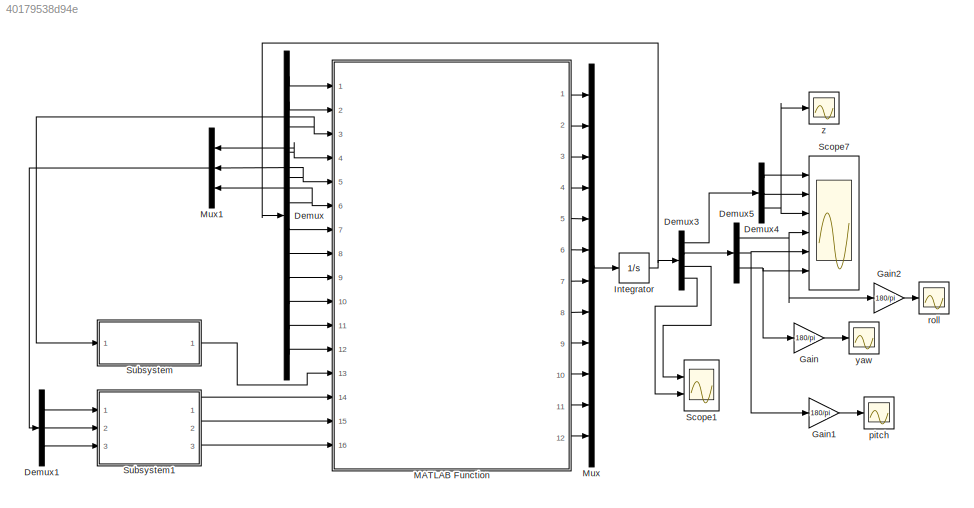
MODEL slx_40179538d94e
KIND model
CONFIG AbsTol = auto
CONFIG EnableMultiTasking = off
CONFIG FixedStep = auto
CONFIG MaxStep = auto
CONFIG MinStep = auto
CONFIG RelTol = 1e-3
CONFIG SampleTimeConstraint = Unconstrained
CONFIG SolverName = VariableStepAuto
CONFIG StartTime = 0.0
CONFIG StopTime = 10.0
BLOCK [Demux] Demux
  Outputs = 12
  Ports = [1, 12]
BLOCK [Demux] Demux1
  Outputs = 3
  Ports = [1, 3]
BLOCK [Demux] Demux3
  Ports = [1, 4]
BLOCK [Demux] Demux4
  Outputs = 3
  Ports = [1, 3]
BLOCK [Demux] Demux5
  Outputs = 3
  Ports = [1, 3]
BLOCK [Gain] Gain
  Gain = 180/pi
BLOCK [Gain] Gain1
  Gain = 180/pi
BLOCK [Gain] Gain2
  Gain = 180/pi
BLOCK [Integrator] Integrator
  InitialCondition = [0;0;0;0;0;0;0;0;0;0;0;0]
  Ports = [1, 1]
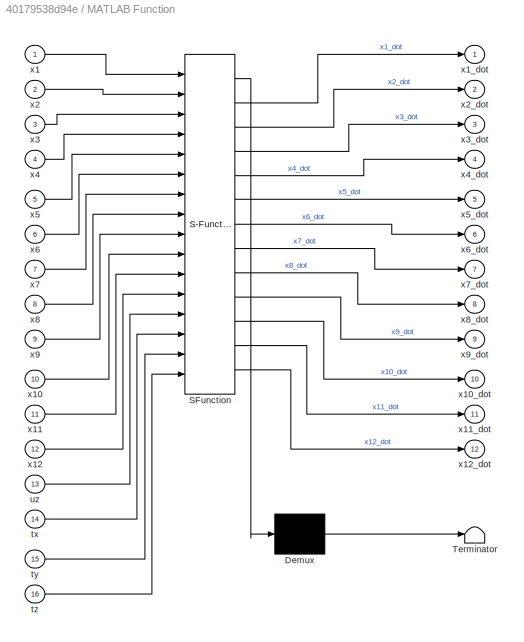
BLOCK [SubSystem] MATLAB Function
  ErrorFcn = Stateflow.Translate.translate
  PermitHierarchicalResolution = ExplicitOnly
  Ports = [16, 12]
  RequestExecContextInheritance = off
  SFBlockType = MATLAB Function
  TreatAsAtomicUnit = on
BLOCK [Demux] MATLAB Function/ Demux 
  Outputs = 1
  Ports = [1, 1]
BLOCK [S-Function] MATLAB Function/ SFunction 
  EnableBusSupport = on
  FunctionName = sf_sfun
  PortCounts = [16 13]
  Ports = [16, 13]
  SFcnIsStateOwnerBlock = off
  SFunctionDeploymentMode = off
  Tag = Stateflow S-Function 2
BLOCK [Terminator] MATLAB Function/ Terminator 
BLOCK [Inport] MATLAB Function/tx
  Port = 14
BLOCK [Inport] MATLAB Function/ty
  Port = 15
BLOCK [Inport] MATLAB Function/tz
  Port = 16
BLOCK [Inport] MATLAB Function/uz
  Port = 13
BLOCK [Inport] MATLAB Function/x1
BLOCK [Inport] MATLAB Function/x10
  Port = 10
BLOCK [Outport] MATLAB Function/x10_dot
  Port = 10
BLOCK [Inport] MATLAB Function/x11
  Port = 11
BLOCK [Outport] MATLAB Function/x11_dot
  Port = 11
BLOCK [Inport] MATLAB Function/x12
  Port = 12
BLOCK [Outport] MATLAB Function/x12_dot
  Port = 12
BLOCK [Outport] MATLAB Function/x1_dot
BLOCK [Inport] MATLAB Function/x2
  Port = 2
BLOCK [Outport] MATLAB Function/x2_dot
  Port = 2
BLOCK [Inport] MATLAB Function/x3
  Port = 3
BLOCK [Outport] MATLAB Function/x3_dot
  Port = 3
BLOCK [Inport] MATLAB Function/x4
  Port = 4
BLOCK [Outport] MATLAB Function/x4_dot
  Port = 4
BLOCK [Inport] MATLAB Function/x5
  Port = 5
BLOCK [Outport] MATLAB Function/x5_dot
  Port = 5
BLOCK [Inport] MATLAB Function/x6
  Port = 6
BLOCK [Outport] MATLAB Function/x6_dot
  Port = 6
BLOCK [Inport] MATLAB Function/x7
  Port = 7
BLOCK [Outport] MATLAB Function/x7_dot
  Port = 7
BLOCK [Inport] MATLAB Function/x8
  Port = 8
BLOCK [Outport] MATLAB Function/x8_dot
  Port = 8
BLOCK [Inport] MATLAB Function/x9
  Port = 9
BLOCK [Outport] MATLAB Function/x9_dot
  Port = 9
BLOCK [Mux] Mux
  DisplayOption = bar
  Inputs = 12
  Ports = [12, 1]
BLOCK [Mux] Mux1
  DisplayOption = bar
  Inputs = 3
  NameLocation = top
  Ports = [3, 1]
BLOCK [Scope] Scope1
  Floating = off
  NameLocation = top
  NumInputPorts = 2
  Ports = [2]
  ScopeSpecificationString = Simulink.scopes.TimeScopeBlockCfg('CurrentConfiguration', extmgr.ConfigurationSet(extmgr.Configuration('Core','General UI',true,'FigureColor',[1 1 1]),extmgr.Configuration('Core','Source UI',true),extmgr.Configuration('Sources','WiredSimulink',true,'DataLoggingSaveFormat','StructureWithTime','DataLoggingDecimation','1','DataLoggingVariableName','ScopeData1'),extmgr.Configuration('Visuals','Time Do...<+6673ch>
BLOCK [Scope] Scope7
  Floating = off
  NameLocation = top
  NumInputPorts = 6
  Ports = [6]
  ScopeSpecificationString = Simulink.scopes.TimeScopeBlockCfg('CurrentConfiguration', extmgr.ConfigurationSet(extmgr.Configuration('Core','General UI',true,'FigureColor',[1 1 1]),extmgr.Configuration('Core','Source UI',true),extmgr.Configuration('Sources','WiredSimulink',true,'DataLoggingSaveFormat','StructureWithTime','DataLoggingDecimation','1'),extmgr.Configuration('Visuals','Time Domain',true,'SerializedDisplays',{struct...<+6634ch>
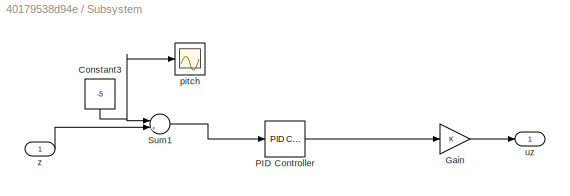
BLOCK [SubSystem] Subsystem
  Ports = [1, 1]
  RequestExecContextInheritance = off
BLOCK [Constant] Subsystem/Constant3
  NameLocation = left
  Value = -5
BLOCK [Gain] Subsystem/Gain
BLOCK [Reference] Subsystem/PID Controller  REF=pid_lib/PID Controller
  Ports = [1, 1]
  SourceBlock = pid_lib/PID Controller
  SourceProductBaseCode = SL
  SourceType = PID 1dof
BLOCK [Sum] Subsystem/Sum1
  Inputs = |+-
  Ports = [2, 1]
BLOCK [Scope] Subsystem/pitch
  Floating = off
  NumInputPorts = 1
  Ports = [1]
  ScopeSpecificationString = Simulink.scopes.TimeScopeBlockCfg('CurrentConfiguration', extmgr.ConfigurationSet(extmgr.Configuration('Core','General UI',true),extmgr.Configuration('Core','Source UI',true),extmgr.Configuration('Sources','WiredSimulink',true,'DataLoggingVariableName','Ref_z','DataLogging',true,'DataLoggingSaveFormat','Array'),extmgr.Configuration('Visuals','Time Domain',true,'SerializedDisplays',{struct('MinYLim...<+1451ch>
BLOCK [Outport] Subsystem/uz
BLOCK [Inport] Subsystem/z
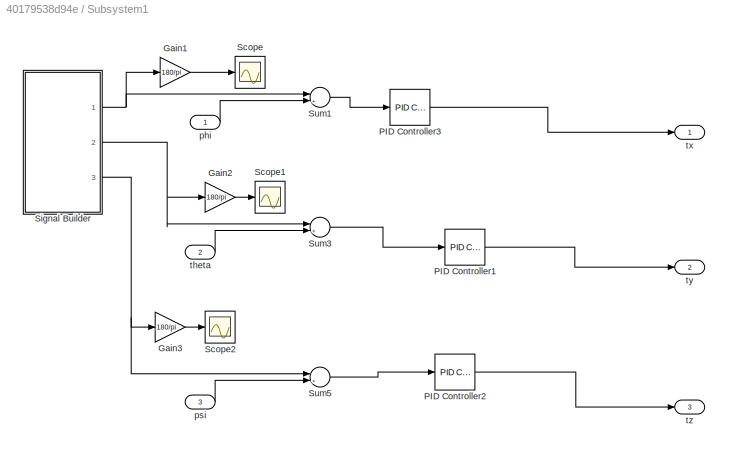
BLOCK [SubSystem] Subsystem1
  Ports = [3, 3]
  RequestExecContextInheritance = off
BLOCK [Gain] Subsystem1/Gain1
  Gain = 180/pi
BLOCK [Gain] Subsystem1/Gain2
  Gain = 180/pi
BLOCK [Gain] Subsystem1/Gain3
  Gain = 180/pi
BLOCK [Reference] Subsystem1/PID Controller1  REF=pid_lib/PID Controller
  Ports = [1, 1]
  SourceBlock = pid_lib/PID Controller
  SourceProductBaseCode = SL
  SourceType = PID 1dof
BLOCK [Reference] Subsystem1/PID Controller2  REF=pid_lib/PID Controller
  Ports = [1, 1]
  SourceBlock = pid_lib/PID Controller
  SourceProductBaseCode = SL
  SourceType = PID 1dof
BLOCK [Reference] Subsystem1/PID Controller3  REF=pid_lib/PID Controller
  Ports = [1, 1]
  SourceBlock = pid_lib/PID Controller
  SourceProductBaseCode = SL
  SourceType = PID 1dof
BLOCK [Scope] Subsystem1/Scope
  Floating = off
  NumInputPorts = 1
  Ports = [1]
  ScopeSpecificationString = Simulink.scopes.TimeScopeBlockCfg('CurrentConfiguration', extmgr.ConfigurationSet(extmgr.Configuration('Core','General UI',true),extmgr.Configuration('Core','Source UI',true),extmgr.Configuration('Sources','WiredSimulink',true,'DataLoggingVariableName','Ref_phi','DataLogging',true,'DataLoggingSaveFormat','Array'),extmgr.Configuration('Visuals','Time Domain',true,'SerializedDisplays',{struct('MinYL...<+1392ch>
BLOCK [Scope] Subsystem1/Scope1
  Floating = off
  NumInputPorts = 1
  Ports = [1]
  ScopeSpecificationString = Simulink.scopes.TimeScopeBlockCfg('CurrentConfiguration', extmgr.ConfigurationSet(extmgr.Configuration('Core','General UI',true),extmgr.Configuration('Core','Source UI',true),extmgr.Configuration('Sources','WiredSimulink',true,'DataLoggingVariableName','Ref_theta','DataLogging',true,'DataLoggingSaveFormat','Array'),extmgr.Configuration('Visuals','Time Domain',true,'SerializedDisplays',{struct('Min...<+1406ch>
BLOCK [Scope] Subsystem1/Scope2
  Floating = off
  NumInputPorts = 1
  Ports = [1]
  ScopeSpecificationString = Simulink.scopes.TimeScopeBlockCfg('CurrentConfiguration', extmgr.ConfigurationSet(extmgr.Configuration('Core','General UI',true),extmgr.Configuration('Core','Source UI',true),extmgr.Configuration('Sources','WiredSimulink',true,'DataLoggingVariableName','Ref_psi','DataLogging',true,'DataLoggingSaveFormat','Array'),extmgr.Configuration('Visuals','Time Domain',true,'SerializedDisplays',{struct('MinYL...<+1404ch>
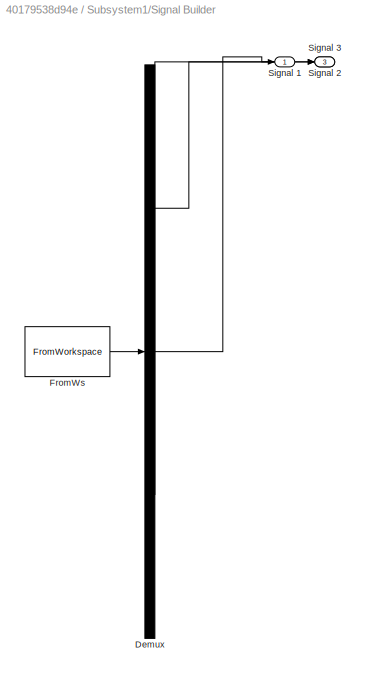
BLOCK [SubSystem] Subsystem1/Signal Builder
  ClipboardFcn = sigbuilder_block('clipboard');
  CloseFcn = sigbuilder_block('close');
  ContinueFcn = sigbuilder_block('continue');
  CopyFcn = sigbuilder_block('copy');
  DeleteFcn = sigbuilder_block('delete');
  LoadFcn = sigbuilder_block('load');
  MaskHideContents = on
  ModelCloseFcn = sigbuilder_block('modelClose');
  NameChangeFcn = sigbuilder_block('namechange');
  OpenFcn = sigbuilder_block('open',[437.6 153 550.4 359.25 ]);
  PauseFcn = sigbuilder_block('pause');
  Ports = [0, 3]
  PreSaveFcn = sigbuilder_block('preSave');
  RequestExecContextInheritance = off
  StartFcn = sigbuilder_block('start');
  StopFcn = sigbuilder_block('stop');
  Tag = STV Subsys
BLOCK [Demux] Subsystem1/Signal Builder/Demux
  DisplayOption = none
  Outputs = 3
  Ports = [1, 3]
  Tag = STV Demux
BLOCK [FromWorkspace] Subsystem1/Signal Builder/FromWs
  Tag = STV FromWs
  VariableName = tuvar
BLOCK [Outport] Subsystem1/Signal Builder/Signal 1
  Tag = STV Outport
BLOCK [Outport] Subsystem1/Signal Builder/Signal 2
  Port = 2
  Tag = STV Outport
BLOCK [Outport] Subsystem1/Signal Builder/Signal 3
  Port = 3
  Tag = STV Outport
BLOCK [Sum] Subsystem1/Sum1
  Inputs = |+-
  Ports = [2, 1]
BLOCK [Sum] Subsystem1/Sum3
  Inputs = |+-
  Ports = [2, 1]
BLOCK [Sum] Subsystem1/Sum5
  Inputs = |+-
  Ports = [2, 1]
BLOCK [Inport] Subsystem1/phi
BLOCK [Inport] Subsystem1/psi
  Port = 3
BLOCK [Inport] Subsystem1/theta
  Port = 2
BLOCK [Outport] Subsystem1/tx
BLOCK [Outport] Subsystem1/ty
  Port = 2
BLOCK [Outport] Subsystem1/tz
  Port = 3
BLOCK [Scope] pitch
  Floating = off
  NumInputPorts = 1
  Ports = [1]
  ScopeSpecificationString = Simulink.scopes.TimeScopeBlockCfg('CurrentConfiguration', extmgr.ConfigurationSet(extmgr.Configuration('Core','General UI',true),extmgr.Configuration('Core','Source UI',true),extmgr.Configuration('Sources','WiredSimulink',true,'DataLoggingVariableName','theta','DataLogging',true,'DataLoggingSaveFormat','Array'),extmgr.Configuration('Visuals','Time Domain',true,'SerializedDisplays',{struct('MinYLim...<+1414ch>
BLOCK [Scope] roll
  Floating = off
  NumInputPorts = 1
  Ports = [1]
  ScopeSpecificationString = Simulink.scopes.TimeScopeBlockCfg('CurrentConfiguration', extmgr.ConfigurationSet(extmgr.Configuration('Core','General UI',true),extmgr.Configuration('Core','Source UI',true),extmgr.Configuration('Sources','WiredSimulink',true,'DataLoggingVariableName','phi','DataLogging',true,'DataLoggingSaveFormat','Array'),extmgr.Configuration('Visuals','Time Domain',true,'SerializedDisplays',{struct('MinYLimRe...<+1412ch>
BLOCK [Scope] yaw
  Floating = off
  NumInputPorts = 1
  Ports = [1]
  ScopeSpecificationString = Simulink.scopes.TimeScopeBlockCfg('CurrentConfiguration', extmgr.ConfigurationSet(extmgr.Configuration('Core','General UI',true),extmgr.Configuration('Core','Source UI',true),extmgr.Configuration('Sources','WiredSimulink',true,'DataLoggingVariableName','psi','DataLogging',true,'DataLoggingSaveFormat','Array'),extmgr.Configuration('Visuals','Time Domain',true,'SerializedDisplays',{struct('MinYLimRe...<+1413ch>
BLOCK [Scope] z
  Floating = off
  NumInputPorts = 1
  Ports = [1]
  ScopeSpecificationString = Simulink.scopes.TimeScopeBlockCfg('CurrentConfiguration', extmgr.ConfigurationSet(extmgr.Configuration('Core','General UI',true),extmgr.Configuration('Core','Source UI',true),extmgr.Configuration('Sources','WiredSimulink',true,'DataLoggingVariableName','z','DataLogging',true,'DataLoggingSaveFormat','Array'),extmgr.Configuration('Visuals','Time Domain',true,'SerializedDisplays',{struct('MinYLimReal...<+1409ch>
LINE Demux1:1 -> Subsystem1:1
LINE Demux1:2 -> Subsystem1:2
LINE Demux1:3 -> Subsystem1:3
LINE Demux3:1 -> Demux4:1
LINE Demux3:2 -> Demux5:1
LINE Demux3:3 -> Scope1:1
LINE Demux3:4 -> Scope1:2
LINE Demux4:1 -> Scope7:1
LINE Demux4:2 -> Scope7:2
NET Demux4:3 -> Scope7:3, z:1
NET Demux5:1 -> Gain2:1, Scope7:4
NET Demux5:2 -> Gain1:1, Scope7:5
NET Demux5:3 -> Gain:1, Scope7:6
LINE Demux:1 -> MATLAB Function:1
LINE Demux:10 -> MATLAB Function:10
LINE Demux:11 -> MATLAB Function:11
LINE Demux:12 -> MATLAB Function:12
LINE Demux:2 -> MATLAB Function:2
NET Demux:3 -> MATLAB Function:3, Subsystem:1
NET Demux:4 -> MATLAB Function:4, Mux1:1
NET Demux:5 -> MATLAB Function:5, Mux1:2
NET Demux:6 -> MATLAB Function:6, Mux1:3
LINE Demux:7 -> MATLAB Function:7
LINE Demux:8 -> MATLAB Function:8
LINE Demux:9 -> MATLAB Function:9
LINE Gain1:1 -> pitch:1
LINE Gain2:1 -> roll:1
LINE Gain:1 -> yaw:1
NET Integrator:1 -> Demux3:1, Demux:1
LINE MATLAB Function:1 -> Mux:1
LINE MATLAB Function:10 -> Mux:10
LINE MATLAB Function:11 -> Mux:11
LINE MATLAB Function:12 -> Mux:12
LINE MATLAB Function:2 -> Mux:2
LINE MATLAB Function:3 -> Mux:3
LINE MATLAB Function:4 -> Mux:4
LINE MATLAB Function:5 -> Mux:5
LINE MATLAB Function:6 -> Mux:6
LINE MATLAB Function:7 -> Mux:7
LINE MATLAB Function:8 -> Mux:8
LINE MATLAB Function:9 -> Mux:9
LINE Mux1:1 -> Demux1:1
LINE Mux:1 -> Integrator:1
NET Subsystem/Constant3:1 -> Subsystem/Sum1:1, Subsystem/pitch:1
LINE Subsystem/Gain:1 -> Subsystem/uz:1
LINE Subsystem/PID Controller:1 -> Subsystem/Gain:1
LINE Subsystem/Sum1:1 -> Subsystem/PID Controller:1
LINE Subsystem/z:1 -> Subsystem/Sum1:2
LINE Subsystem1/Gain1:1 -> Subsystem1/Scope:1
LINE Subsystem1/Gain2:1 -> Subsystem1/Scope1:1
LINE Subsystem1/Gain3:1 -> Subsystem1/Scope2:1
LINE Subsystem1/PID Controller1:1 -> Subsystem1/ty:1
LINE Subsystem1/PID Controller2:1 -> Subsystem1/tz:1
LINE Subsystem1/PID Controller3:1 -> Subsystem1/tx:1
NET Subsystem1/Signal Builder:1 -> Subsystem1/Gain1:1, Subsystem1/Sum1:1
NET Subsystem1/Signal Builder:2 -> Subsystem1/Gain2:1, Subsystem1/Sum3:1
NET Subsystem1/Signal Builder:3 -> Subsystem1/Gain3:1, Subsystem1/Sum5:1
LINE Subsystem1/Sum1:1 -> Subsystem1/PID Controller3:1
LINE Subsystem1/Sum3:1 -> Subsystem1/PID Controller1:1
LINE Subsystem1/Sum5:1 -> Subsystem1/PID Controller2:1
LINE Subsystem1/phi:1 -> Subsystem1/Sum1:2
LINE Subsystem1/psi:1 -> Subsystem1/Sum5:2
LINE Subsystem1/theta:1 -> Subsystem1/Sum3:2
LINE Subsystem1:1 -> MATLAB Function:14
LINE Subsystem1:2 -> MATLAB Function:15
LINE Subsystem1:3 -> MATLAB Function:16
LINE Subsystem:1 -> MATLAB Function:13
note: NET lines group one-source signal fan-out (src -> all destinations, sorted); 1:1 wires keep LINE
CHART MATLAB Function states=1 transitions=1
  STATE_LABEL 'eML_blk_kernel()'
  STATE_LABEL 'SCRIPT:\nfunction [x1_dot,x2_dot,x3_dot,x4_dot,x5_dot,x6_dot,x7_dot,x8_dot,x9_dot,x10_dot,x11_dot,x12_dot]= fcn(x1,x2,x3,x4,x5,x6,x7,x8,x9,x10,x11,x12,uz,tx,ty,tz)\n\n% Ixx= 1.2; \n% Iyy= 1.2;\n% Izz= 0.3;\n%Izz= 2.3;\n%k=1;\nk = 1e-3;\nL= 0.25;\nm= 2;\n%km= 0.2;\n%km = 0.5e-4;\ng= 9.81;\n%gamma = km/k; \n\nIxx = (1/12)*m*(0.2^2+0.2^2);\nIyy= (1/12)*m*(0.2^2+0.2^2);\nIzz= (1/12)*m*(0.2^2+0.2^2);\nI= [Ixx 0 0;0 Iyy 0...<+3184ch>'
CHART  states=0 transitions=0
